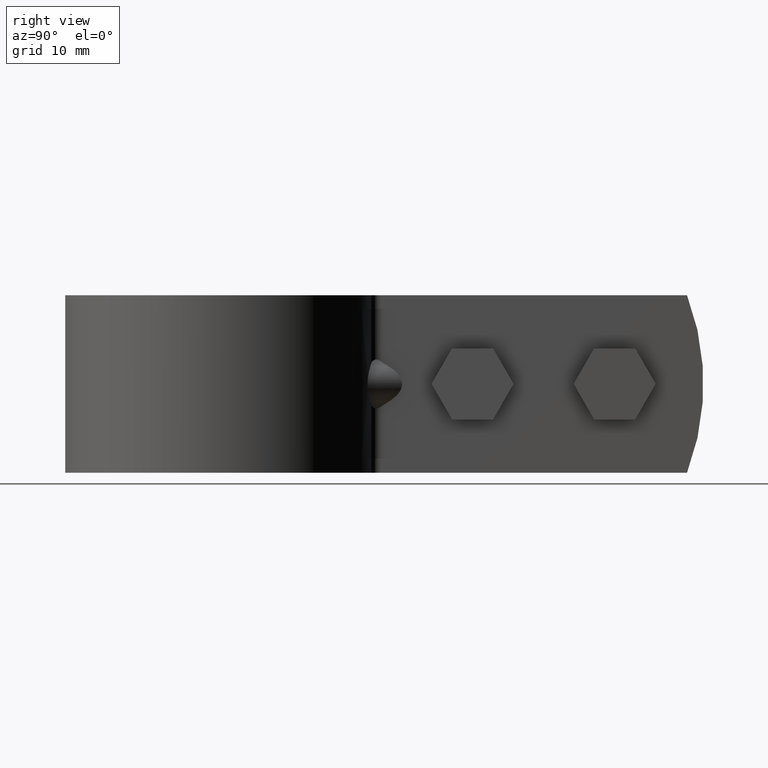
[diagram: clean part render]
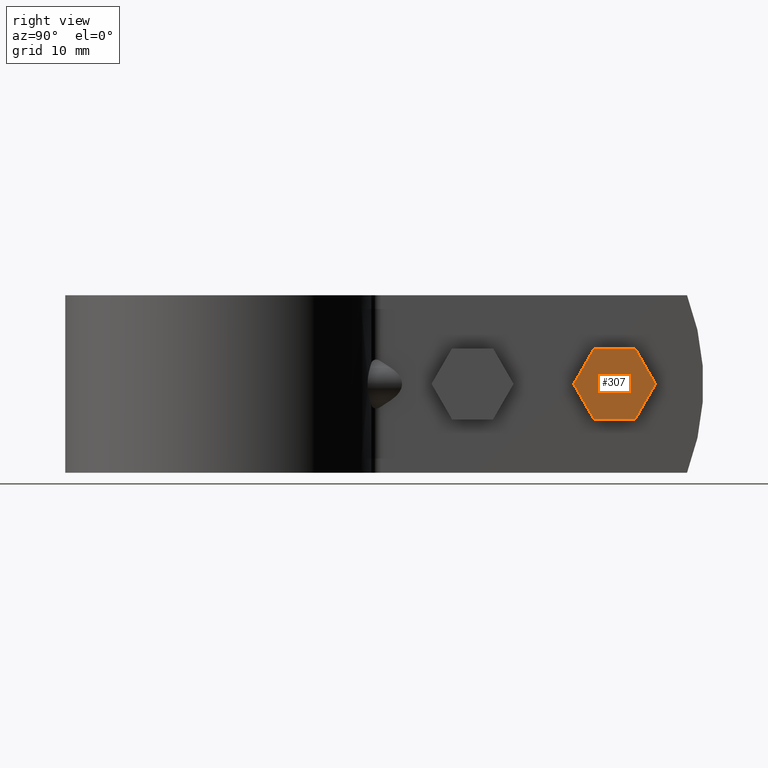
[diagram: same view with one face highlighted and labeled with its STEP entity id]
A machine part, right view. The second image highlights one B-rep face of the part: STEP entity #307.
In plain terms, the highlighted planar face has unit normal (-1, 0, 0).
Its self-contained STEP definition (entity closure, byte-faithful):
#307 = ADVANCED_FACE( '', ( #465 ), #466, .F. );
#465 = FACE_OUTER_BOUND( '', #697, .T. );
#466 = PLANE( '', #698 );
#697 = EDGE_LOOP( '', ( #1158, #1159, #1160, #1161, #1162, #1163 ) );
#698 = AXIS2_PLACEMENT_3D( '', #1164, #1165, #1166 );
#1158 = ORIENTED_EDGE( '', *, *, #1716, .T. );
#1159 = ORIENTED_EDGE( '', *, *, #1719, .T. );
#1160 = ORIENTED_EDGE( '', *, *, #1722, .T. );
#1161 = ORIENTED_EDGE( '', *, *, #1723, .T. );
#1162 = ORIENTED_EDGE( '', *, *, #1724, .T. );
#1163 = ORIENTED_EDGE( '', *, *, #1725, .T. );
#1164 = CARTESIAN_POINT( '', ( 9.10000000000000, 46.7101197010229, -5.00000000000000 ) );
#1165 = DIRECTION( '', ( -1.00000000000000, 6.06692130572647E-017, 0.000000000000000 ) );
#1166 = DIRECTION( '', ( 0.000000000000000, 0.000000000000000, 1.00000000000000 ) );
#1716 = EDGE_CURVE( '', #2026, #2024, #2027, .T. );
#1719 = EDGE_CURVE( '', #2024, #2029, #2031, .T. );
#1722 = EDGE_CURVE( '', #2029, #2036, #2037, .T. );
#1723 = EDGE_CURVE( '', #2036, #2038, #2039, .T. );
#1724 = EDGE_CURVE( '', #2038, #2040, #2041, .T. );
#1725 = EDGE_CURVE( '', #2040, #2026, #2042, .T. );
#2024 = VERTEX_POINT( '', #2542 );
#2026 = VERTEX_POINT( '', #2545 );
#2027 = LINE( '', #2546, #2547 );
#2029 = VERTEX_POINT( '', #2550 );
#2031 = LINE( '', #2553, #2554 );
#2036 = VERTEX_POINT( '', #2559 );
#2037 = LINE( '', #2560, #2561 );
#2038 = VERTEX_POINT( '', #2562 );
#2039 = LINE( '', #2563, #2564 );
#2040 = VERTEX_POINT( '', #2565 );
#2041 = LINE( '', #2566, #2567 );
#2042 = LINE( '', #2568, #2569 );
#2542 = CARTESIAN_POINT( '', ( 9.10000000000000, 58.2571250848154, -5.00000000000000 ) );
#2545 = CARTESIAN_POINT( '', ( 9.10000000000000, 52.4836223929191, -5.00000000000000 ) );
#2546 = CARTESIAN_POINT( '', ( 9.10000000000000, 52.4836223929191, -5.00000000000000 ) );
#2547 = VECTOR( '', #3144, 1000.00000000000 );
#2550 = CARTESIAN_POINT( '', ( 9.10000000000000, 61.1438764307635, -8.67361737988404E-016 ) );
#2553 = CARTESIAN_POINT( '', ( 9.10000000000000, 58.2571250848154, -5.00000000000000 ) );
#2554 = VECTOR( '', #3147, 1000.00000000000 );
#2559 = CARTESIAN_POINT( '', ( 9.10000000000000, 58.2571250848154, 5.00000000000000 ) );
#2560 = CARTESIAN_POINT( '', ( 9.10000000000000, 61.1438764307635, -1.22087514200374E-015 ) );
#2561 = VECTOR( '', #3154, 1000.00000000000 );
#2562 = CARTESIAN_POINT( '', ( 9.10000000000000, 52.4836223929191, 5.00000000000000 ) );
#2563 = CARTESIAN_POINT( '', ( 9.10000000000000, 58.2571250848154, 5.00000000000000 ) );
#2564 = VECTOR( '', #3155, 1000.00000000000 );
#2565 = CARTESIAN_POINT( '', ( 9.10000000000000, 49.5968710469710, -8.67361737988404E-016 ) );
#2566 = CARTESIAN_POINT( '', ( 9.10000000000000, 52.4836223929191, 5.00000000000000 ) );
#2567 = VECTOR( '', #3156, 1000.00000000000 );
#2568 = CARTESIAN_POINT( '', ( 9.10000000000000, 49.5968710469710, 1.93178474057610E-016 ) );
#2569 = VECTOR( '', #3157, 1000.00000000000 );
#3144 = DIRECTION( '', ( 6.06692130572647E-017, 1.00000000000000, -3.00462919747432E-016 ) );
#3147 = DIRECTION( '', ( 3.03346065286324E-017, 0.500000000000000, 0.866025403784439 ) );
#3154 = DIRECTION( '', ( -3.03346065286324E-017, -0.500000000000000, 0.866025403784439 ) );
#3155 = DIRECTION( '', ( -6.06692130572647E-017, -1.00000000000000, 0.000000000000000 ) );
#3156 = DIRECTION( '', ( -3.03346065286324E-017, -0.500000000000000, -0.866025403784439 ) );
#3157 = DIRECTION( '', ( 3.03346065286324E-017, 0.500000000000000, -0.866025403784439 ) );